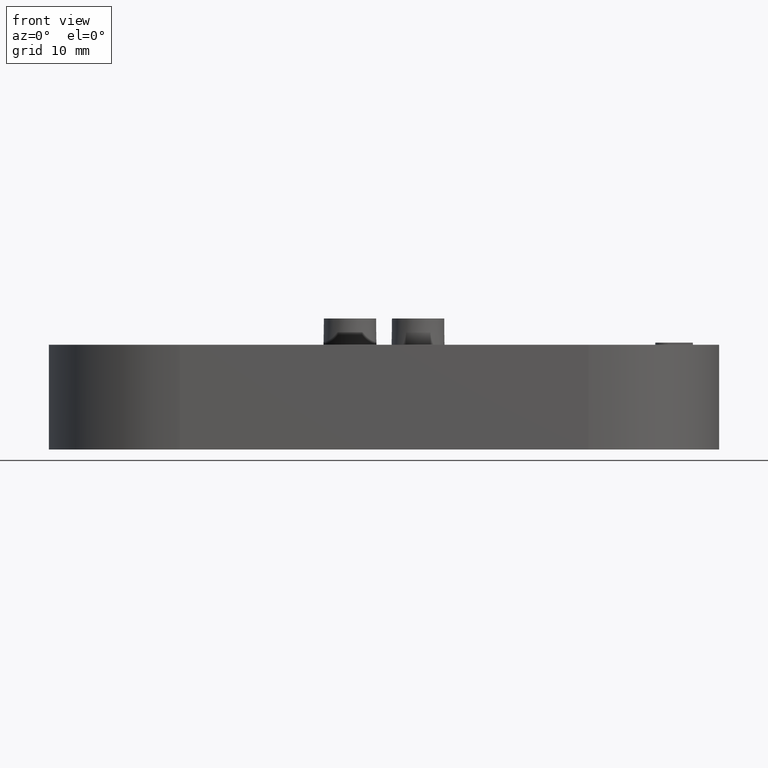
[diagram: clean part render]
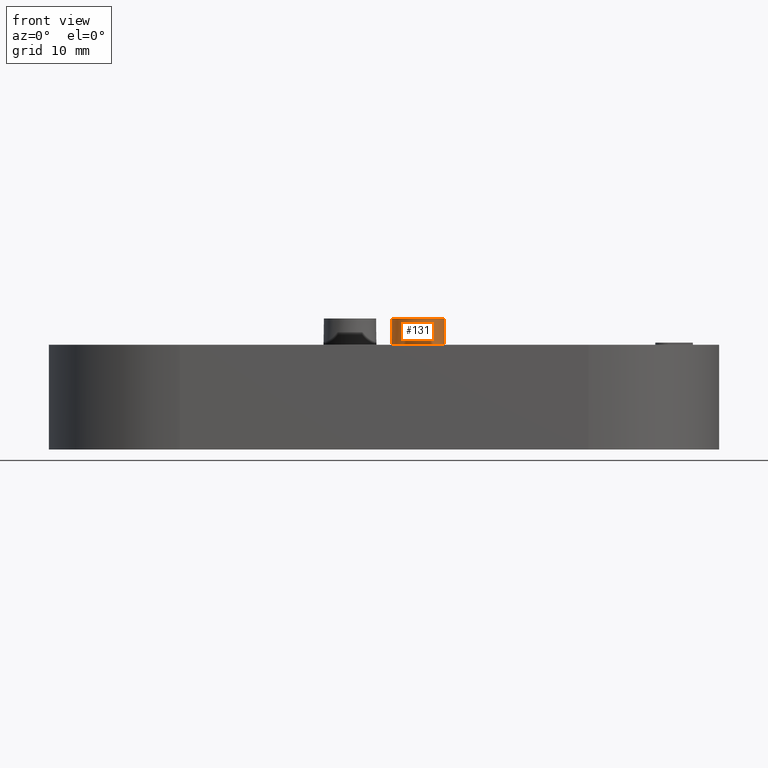
[diagram: same view with one face highlighted and labeled with its STEP entity id]
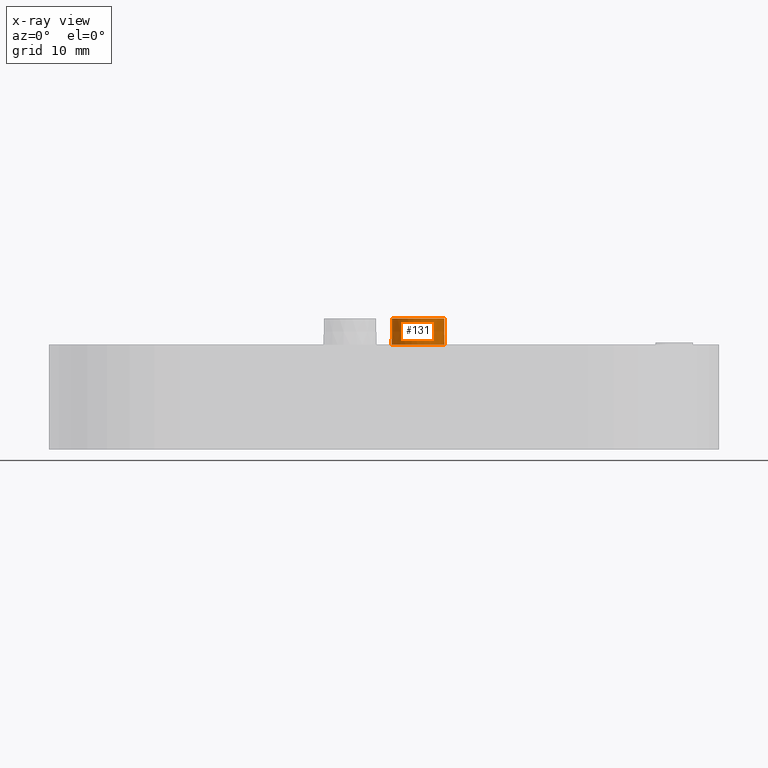
[diagram: x-ray of the same camera — body ghosted, the highlighted face saturated]
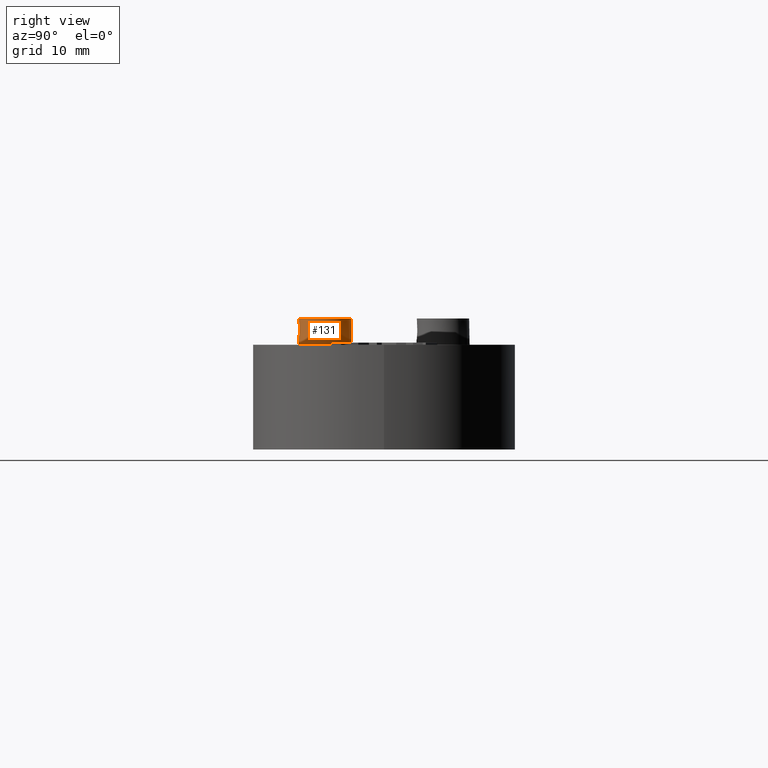
[diagram: same view with one face highlighted and labeled with its STEP entity id]
A machine part, front view. The second image highlights one B-rep face of the part: STEP entity #131.
The next image is the same camera in x-ray: the body ghosted, the highlighted face saturated — about 0% of this face is hidden behind the body in this view.
A second angle (right view) of the same face is appended — the face is thin or edge-on in the first view.
In plain terms, the highlighted conical surface has half-angle 1 deg.
Its self-contained STEP definition (entity closure, byte-faithful):
#131 = ADVANCED_FACE( '', ( #389, #390 ), #391, .T. );
#389 = FACE_OUTER_BOUND( '', #805, .T. );
#390 = FACE_BOUND( '', #806, .T. );
#391 = CONICAL_SURFACE( '', #807, 2.50000000000000, 0.0174532925199433 );
#805 = EDGE_LOOP( '', ( #1517 ) );
#806 = EDGE_LOOP( '', ( #1518 ) );
#807 = AXIS2_PLACEMENT_3D( '', #1519, #1520, #1521 );
#1517 = ORIENTED_EDGE( '', *, *, #2618, .F. );
#1518 = ORIENTED_EDGE( '', *, *, #2723, .T. );
#1519 = CARTESIAN_POINT( '', ( 3.25000000000000, -5.62916512459885, 12.5000000000000 ) );
#1520 = DIRECTION( '', ( 0.000000000000000, -6.12303176911189E-017, -1.00000000000000 ) );
#1521 = DIRECTION( '', ( 0.000000000000000, 1.00000000000000, -6.12303176911189E-017 ) );
#2618 = EDGE_CURVE( '', #3114, #3114, #3115, .T. );
#2723 = EDGE_CURVE( '', #3283, #3283, #3284, .T. );
#3114 = VERTEX_POINT( '', #3916 );
#3115 = CIRCLE( '', #3917, 2.54363766232054 );
#3283 = VERTEX_POINT( '', #4161 );
#3284 = CIRCLE( '', #4162, 2.50000000000000 );
#3916 = CARTESIAN_POINT( '', ( 3.25000000000000, -3.08552746227830, 10.0000000000000 ) );
#3917 = AXIS2_PLACEMENT_3D( '', #5022, #5023, #5024 );
#4161 = CARTESIAN_POINT( '', ( 5.75000000000000, -5.62916512459885, 12.5000000000000 ) );
#4162 = AXIS2_PLACEMENT_3D( '', #5185, #5186, #5187 );
#5022 = CARTESIAN_POINT( '', ( 3.25000000000000, -5.62916512459885, 10.0000000000000 ) );
#5023 = DIRECTION( '', ( 0.000000000000000, -6.12303176911189E-017, -1.00000000000000 ) );
#5024 = DIRECTION( '', ( 0.000000000000000, 1.00000000000000, -6.12303176911189E-017 ) );
#5185 = CARTESIAN_POINT( '', ( 3.25000000000000, -5.62916512459885, 12.5000000000000 ) );
#5186 = DIRECTION( '', ( 0.000000000000000, -6.12303176911189E-017, -1.00000000000000 ) );
#5187 = DIRECTION( '', ( 1.00000000000000, 0.000000000000000, 0.000000000000000 ) );